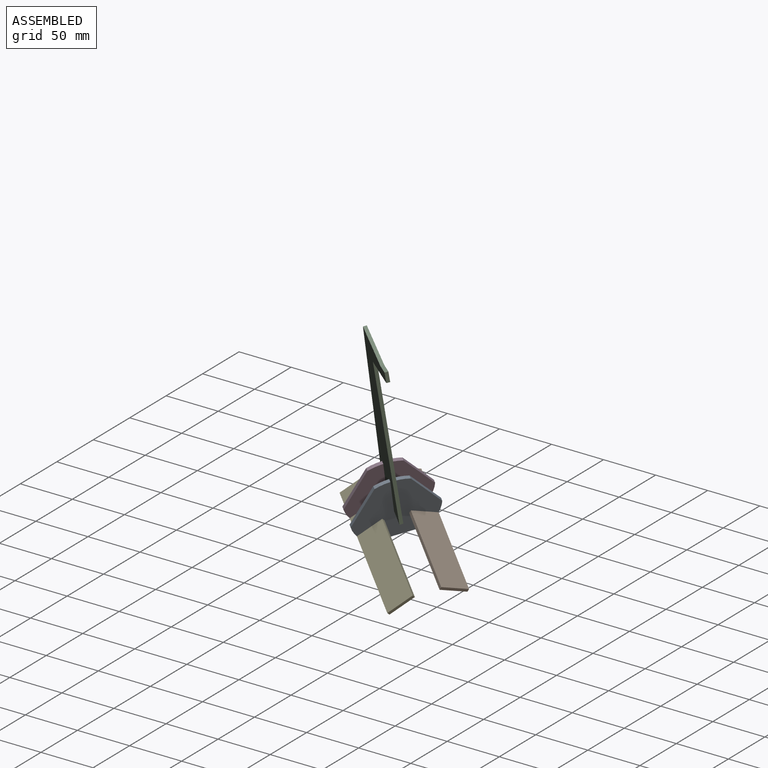
[diagram: assembled view]
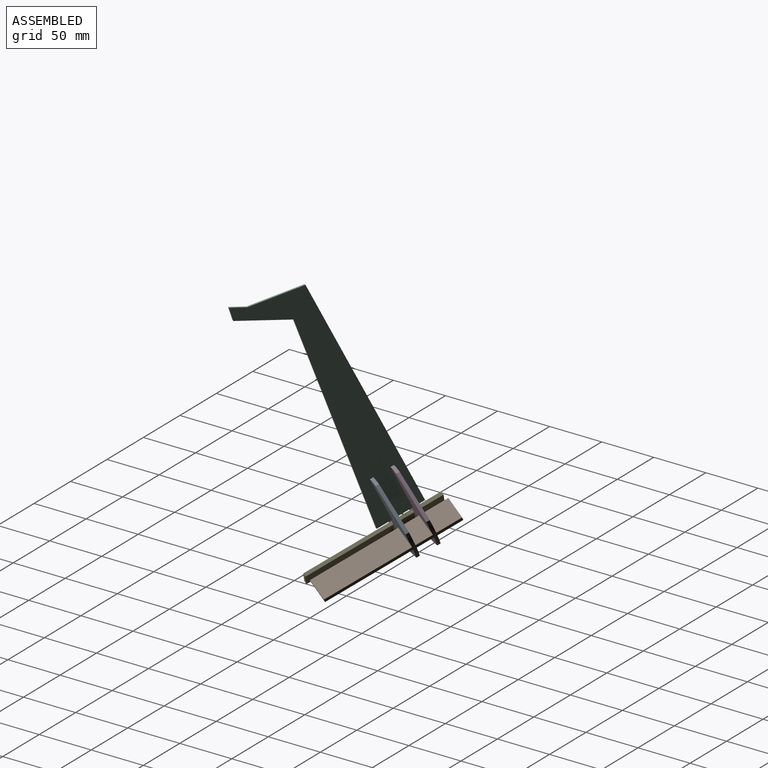
[diagram: assembled view, second angle]
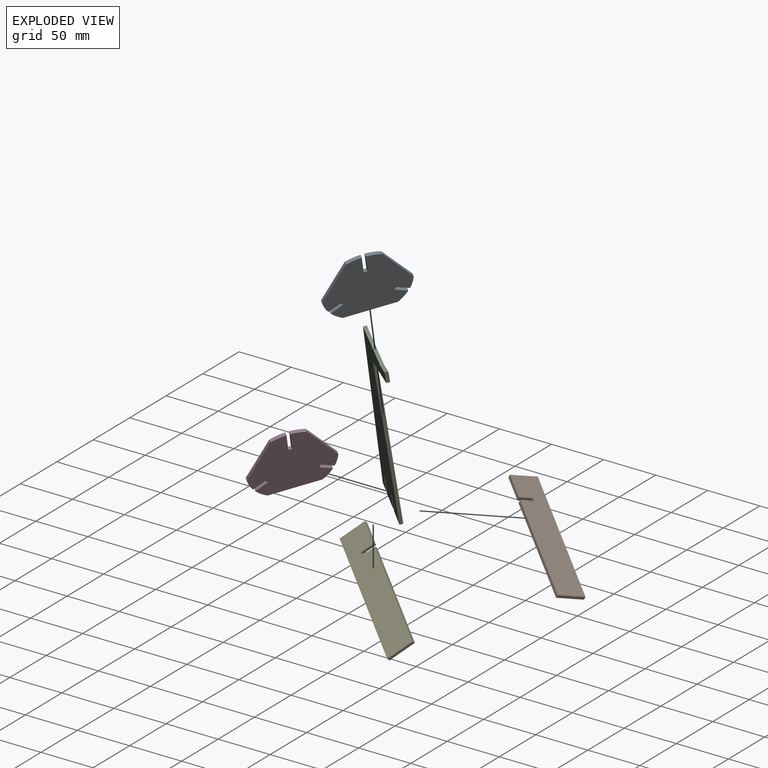
[diagram: exploded view]
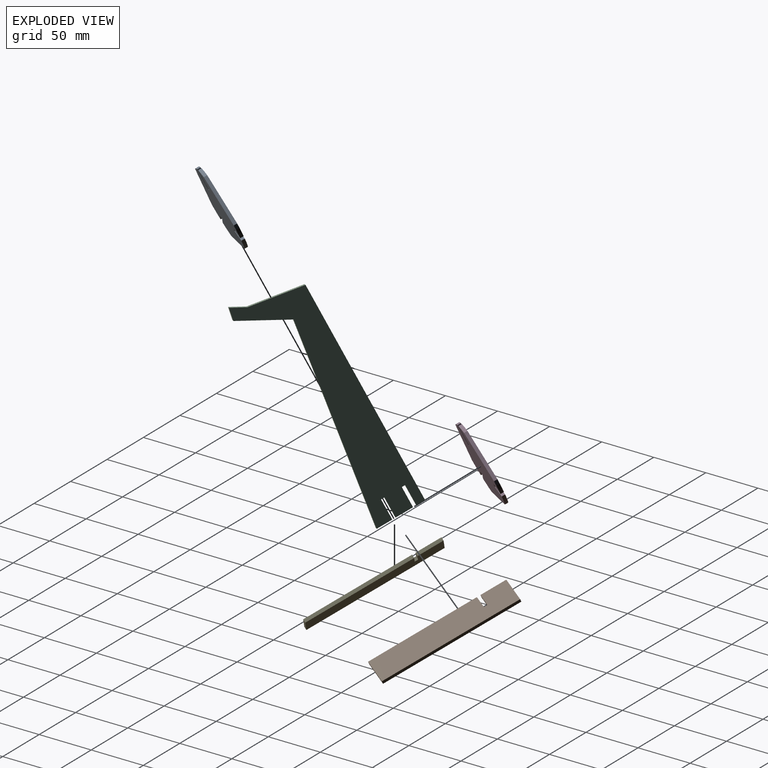
[diagram: exploded view, second angle]
ASSEMBLY  parts=5 mates=4
PART A: 20 faces, bbox 75.7x3.2x68.5 mm
  f0: cylinder r=38.1mm len=13.38mm, axis (0,1,0), area 43.8mm2, adj f1,f17,f18,f19
  f1: plane 18.98x3.18mm, normal (-1,0,0), area 60.3mm2, adj f0,f2,f18,f19
  f2: plane 3.18x3.18mm, normal (0,0,1), area 10.1mm2, adj f1,f3,f18,f19
  f3: plane 18.98x3.18mm, normal (1,0,0), area 60.3mm2, adj f2,f4,f18,f19
  f4: cylinder r=38.1mm len=13.38mm, axis (0,1,0), area 43.8mm2, adj f3,f5,f18,f19
  f5: plane 39.59x22.86mm, normal (-0.87,0,0.5), area 145.2mm2, adj f4,f6,f18,f19
  f6: cylinder r=38.1mm len=13.1mm, axis (0,1,0), area 43.8mm2, adj f5,f7,f18,f19
  f7: plane 10.97x6.33mm, normal (0.5,0,-0.87), area 40.2mm2, adj f6,f8,f18,f19
  f8: plane 3.18x2.75mm, normal (-0.87,0,-0.5), area 10.1mm2, adj f7,f9,f18,f19
  f9: plane 10.97x6.33mm, normal (-0.5,0,0.87), area 40.2mm2, adj f8,f10,f18,f19
  f10: cylinder r=38.1mm len=10.07mm, axis (0,1,0), area 43.8mm2, adj f9,f11,f18,f19
  f11: plane 45.72x3.18mm, normal (0,0,-1), area 145.2mm2, adj f10,f12,f18,f19
  f12: cylinder r=38.1mm len=10.07mm, axis (0,1,0), area 43.8mm2, adj f11,f13,f18,f19
  f13: plane 10.97x6.33mm, normal (0.5,0,0.87), area 40.2mm2, adj f12,f14,f18,f19
  f14: plane 3.18x2.75mm, normal (0.87,0,-0.5), area 10.1mm2, adj f13,f15,f18,f19
  f15: plane 10.97x6.33mm, normal (-0.5,0,-0.87), area 40.2mm2, adj f14,f16,f18,f19
  f16: cylinder r=38.1mm len=13.1mm, axis (0,1,0), area 43.8mm2, adj f15,f17,f18,f19
  f17: plane 39.59x22.86mm, normal (0.87,0,0.5), area 145.2mm2, adj f0,f16,f18,f19
  f18: plane 75.65x68.55mm, normal (0,-1,0), area 3707.4mm2, adj f0,f1,f2,f3,f4,f5,f6,f7
  f19: plane 75.65x68.55mm, normal (0,1,0), area 3707.4mm2, adj f0,f1,f2,f3,f4,f5,f6,f7
PART B: 10 faces, bbox 127x3.2x25.4 mm
  f0: plane 23.81x3.18mm, normal (0,0,1), area 75.6mm2, adj f1,f7,f8,f9
  f1: plane 25.4x3.18mm, normal (-1,0,0), area 80.6mm2, adj f0,f2,f8,f9
  f2: plane 127x3.18mm, normal (0,0,-1), area 403.2mm2, adj f1,f3,f8,f9
  f3: plane 25.4x3.18mm, normal (1,0,0), area 80.6mm2, adj f2,f4,f8,f9
  f4: plane 100.01x3.18mm, normal (0,0,1), area 317.5mm2, adj f3,f5,f8,f9
  f5: plane 12.7x3.18mm, normal (-1,0,0), area 40.3mm2, adj f4,f6,f8,f9
  f6: plane 3.18x3.18mm, normal (0,0,1), area 10.1mm2, adj f5,f7,f8,f9
  f7: plane 12.7x3.18mm, normal (1,0,0), area 40.3mm2, adj f0,f6,f8,f9
  f8: plane 127x25.4mm, normal (0,-1,0), area 3185.5mm2, adj f0,f1,f2,f3,f4,f5,f6,f7
  f9: plane 127x25.4mm, normal (0,1,0), area 3185.5mm2, adj f0,f1,f2,f3,f4,f5,f6,f7
PART C: 17 faces, bbox 63.6x3.2x219.2 mm
  f0: plane 19.05x3.18mm, normal (-1,0,0), area 60.5mm2, adj f1,f14,f15,f16
  f1: plane 7.94x3.18mm, normal (0,0,-1), area 25.2mm2, adj f0,f2,f15,f16
  f2: plane 203.2x3.18mm, normal (1,0,0), area 645.2mm2, adj f1,f3,f15,f16
  f3: plane 48.79x8.6mm, normal (0.17,0,0.98), area 157.3mm2, adj f2,f4,f15,f16
  f4: plane 12.86x7.43mm, normal (0.5,0,0.87), area 47.2mm2, adj f3,f5,f15,f16
  f5: plane 11.26x3.18mm, normal (-0.98,0,0.17), area 36.3mm2, adj f4,f6,f15,f16
  f6: plane 42.14x24.33mm, normal (-0.5,0,-0.87), area 154.5mm2, adj f5,f7,f15,f16
  f7: plane 183.64x22.96mm, normal (-0.99,0,0.12), area 587.6mm2, adj f6,f8,f15,f16
  f8: plane 14.29x3.18mm, normal (0,0,-1), area 45.4mm2, adj f7,f9,f15,f16
  f9: plane 19.05x3.18mm, normal (1,0,0), area 60.5mm2, adj f8,f10,f15,f16
  f10: plane 3.18x3.18mm, normal (0,0,-1), area 10.1mm2, adj f9,f11,f15,f16
  f11: plane 19.05x3.18mm, normal (-1,0,0), area 60.5mm2, adj f10,f12,f15,f16
  f12: plane 15.88x3.18mm, normal (0,0,-1), area 50.4mm2, adj f11,f13,f15,f16
  f13: plane 19.05x3.18mm, normal (1,0,0), area 60.5mm2, adj f12,f14,f15,f16
  f14: plane 3.18x3.18mm, normal (0,0,-1), area 10.1mm2, adj f0,f13,f15,f16
  f15: plane 219.23x63.64mm, normal (0,-1,0), area 7055mm2, adj f0,f1,f2,f3,f4,f5,f6,f7
  f16: plane 219.23x63.64mm, normal (0,1,0), area 7055mm2, adj f0,f1,f2,f3,f4,f5,f6,f7
PART D: same geometry as A
PART E: same geometry as B
PLACE A rot(axis=(0,0.27,-0.96),130.5deg) t=(107.26,-16.27,19.13)mm
PLACE B rot(axis=(0.86,-0.02,-0.52),90deg) t=(91.85,40.48,29.86)mm
PLACE C rot(axis=(0.18,-0.18,0.97),142.3deg) t=(98.09,-11.54,23.54)mm
PLACE D rot(axis=(0.5,0,0.87),57.9deg) t=(90.96,-4.45,28.54)mm
PLACE E rot(axis=(-0.65,0.65,-0.41),57.2deg) t=(48.46,-6.74,14.06)mm
MATE fastened B.f6 <-> D.f14  axis (-0.46,-0.85,0.27) through (103.83,16.21,21.11)mm
MATE fastened D.f2 <-> C.f14  axis (0.2,-0.42,0.88) through (95.99,-13.37,44.72)mm
MATE fastened A.f2 <-> C.f10  axis (0.2,-0.42,0.88) through (109.96,-23.51,36.65)mm
MATE fastened E.f6 <-> D.f8  axis (0.66,0.42,0.62) through (75.28,-16.05,12.2)mm
